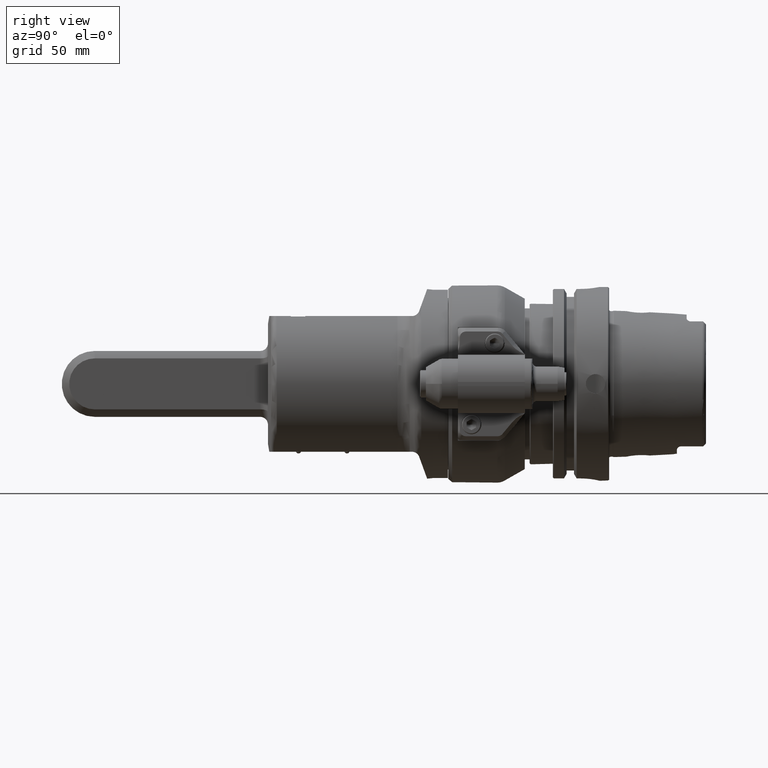
[diagram: clean part render]
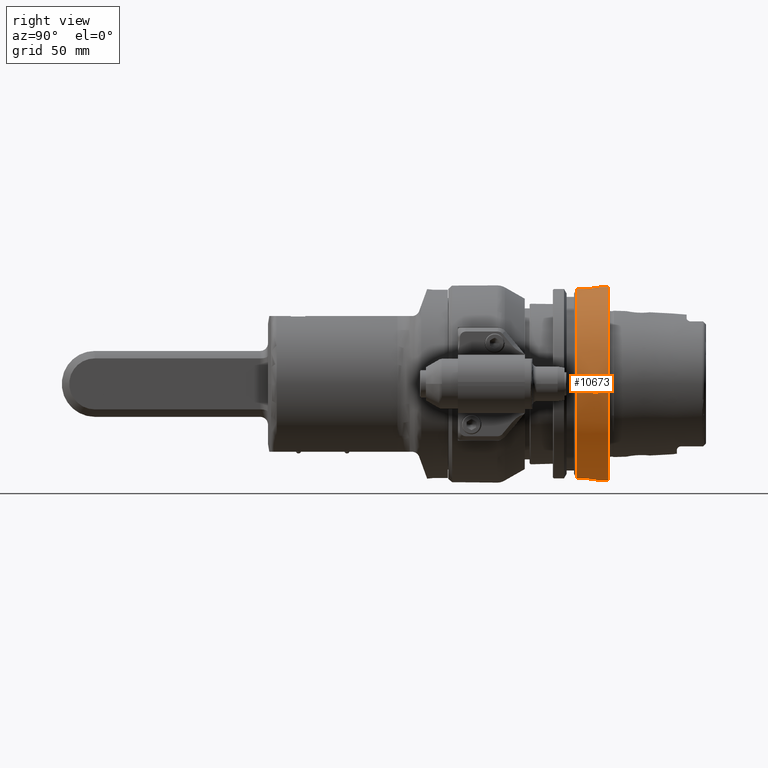
[diagram: same view with one face highlighted and labeled with its STEP entity id]
A machine part, right view. The second image highlights one B-rep face of the part: STEP entity #10673.
In plain terms, the highlighted cylindrical surface (bore or boss wall) has radius 50 mm, axis along (0, -1, 0).
Its self-contained STEP definition (entity closure, byte-faithful):
#300=FACE_BOUND('',#2525,.T.);
#430=B_SPLINE_CURVE_WITH_KNOTS('',3,(#59628,#59629,#59630,#59631,#59632,
#59633,#59634,#59635,#59636,#59637,#59638,#59639),.UNSPECIFIED.,.F.,.F.,
(4,2,2,2,2,4),(-2.43960407431131E-12,0.372938236851937,0.745876473706314,
0.949211985781746,1.15254749785718,1.4744467776868),.UNSPECIFIED.);
#431=B_SPLINE_CURVE_WITH_KNOTS('',3,(#59645,#59646,#59647,#59648,#59649,
#59650,#59651,#59652,#59653,#59654,#59655,#59656,#59657,#59658,#59659,#59660,
#59661,#59662),.UNSPECIFIED.,.F.,.F.,(4,2,2,2,2,2,2,2,4),(4.04676292476118E-14,
0.377795255890225,0.755590511780409,1.1333645980446,1.51113868430879,1.88891277057297,
2.26668685683716,2.64448211272735,3.02227736861753),.UNSPECIFIED.);
#432=B_SPLINE_CURVE_WITH_KNOTS('',3,(#59670,#59671,#59672,#59673,#59674,
#59675,#59676,#59677,#59678,#59679),.UNSPECIFIED.,.F.,.F.,(4,2,2,2,4),(1.50996806152533,
1.88841920047208,2.26687033941884,2.64473353329375,3.02259672716866),
 .UNSPECIFIED.);
#433=B_SPLINE_CURVE_WITH_KNOTS('',3,(#59683,#59684,#59685,#59686,#59687,
#59688,#59689,#59690,#59691,#59692),.UNSPECIFIED.,.F.,.F.,(4,2,2,2,4),(6.72795152923875E-14,
0.37808380192431,0.756167603848552,1.13439818677692,1.51262876970529),
 .UNSPECIFIED.);
#434=B_SPLINE_CURVE_WITH_KNOTS('',3,(#59702,#59703,#59704,#59705,#59706,
#59707,#59708,#59709,#59710,#59711,#59712,#59713,#59714,#59715,#59716,#59717,
#59718,#59719,#59720,#59721,#59722,#59723,#59724,#59725,#59726,#59727,#59728,
#59729,#59730,#59731,#59732,#59733,#59734,#59735),.UNSPECIFIED.,.T.,.F.,
(4,2,2,2,2,2,2,2,2,2,2,2,2,2,2,2,4),(-3.01565744395019,-2.82717853293504,
-2.63869962191989,-2.45022135244126,-2.26174308296264,-2.07326481348402,
-1.88478654400539,-1.69630763299024,-1.50782872197509,-1.31934981095994,
-1.1308708999448,-0.942392630466171,-0.753914360987547,-0.565436091508923,
-0.376957822030299,-0.188478911015149,0.),.UNSPECIFIED.);
#735=CYLINDRICAL_SURFACE('',#11776,50.);
#1180=CIRCLE('',#11777,50.);
#1181=CIRCLE('',#11778,50.);
#1182=CIRCLE('',#11779,50.);
#1183=CIRCLE('',#11780,50.);
#1184=CIRCLE('',#11781,50.);
#1185=CIRCLE('',#11782,50.);
#1186=CIRCLE('',#11783,50.);
#1792=FACE_OUTER_BOUND('',#2524,.T.);
#2524=EDGE_LOOP('',(#9141,#9142,#9143,#9144,#9145,#9146,#9147,#9148,#9149,
#9150,#9151,#9152,#9153,#9154,#9155,#9156,#9157,#9158,#9159));
#2525=EDGE_LOOP('',(#9160));
#3254=LINE('',#59601,#4006);
#3262=LINE('',#59627,#4014);
#3263=LINE('',#59643,#4015);
#3264=LINE('',#59664,#4016);
#3265=LINE('',#59668,#4017);
#3266=LINE('',#59694,#4018);
#3267=LINE('',#59697,#4019);
#4006=VECTOR('',#14427,2.11549883567801);
#4014=VECTOR('',#14439,11.7523966951103);
#4015=VECTOR('',#14442,1.752404735808);
#4016=VECTOR('',#14443,1.752404735808);
#4017=VECTOR('',#14446,1.752404735808);
#4018=VECTOR('',#14449,1.752404735809);
#4019=VECTOR('',#14452,50.);
#4962=VERTEX_POINT('',#59599);
#4963=VERTEX_POINT('',#59600);
#4971=VERTEX_POINT('',#59623);
#4972=VERTEX_POINT('',#59624);
#4973=VERTEX_POINT('',#59626);
#4974=VERTEX_POINT('',#59640);
#4975=VERTEX_POINT('',#59642);
#4976=VERTEX_POINT('',#59644);
#4977=VERTEX_POINT('',#59663);
#4978=VERTEX_POINT('',#59665);
#4979=VERTEX_POINT('',#59667);
#4980=VERTEX_POINT('',#59669);
#4981=VERTEX_POINT('',#59680);
#4982=VERTEX_POINT('',#59682);
#4983=VERTEX_POINT('',#59693);
#4984=VERTEX_POINT('',#59696);
#4985=VERTEX_POINT('',#59698);
#4986=VERTEX_POINT('',#59701);
#6391=EDGE_CURVE('',#4962,#4963,#3254,.T.);
#6401=EDGE_CURVE('',#4971,#4972,#1180,.T.);
#6402=EDGE_CURVE('',#4971,#4973,#3262,.T.);
#6403=EDGE_CURVE('',#4962,#4973,#430,.T.);
#6404=EDGE_CURVE('',#4974,#4963,#1181,.T.);
#6405=EDGE_CURVE('',#4974,#4975,#3263,.T.);
#6406=EDGE_CURVE('',#4976,#4975,#431,.T.);
#6407=EDGE_CURVE('',#4976,#4977,#3264,.T.);
#6408=EDGE_CURVE('',#4978,#4977,#1182,.T.);
#6409=EDGE_CURVE('',#4978,#4979,#3265,.T.);
#6410=EDGE_CURVE('',#4980,#4979,#432,.T.);
#6411=EDGE_CURVE('',#4980,#4981,#1183,.T.);
#6412=EDGE_CURVE('',#4982,#4981,#433,.T.);
#6413=EDGE_CURVE('',#4982,#4983,#3266,.T.);
#6414=EDGE_CURVE('',#4972,#4983,#1184,.T.);
#6415=EDGE_CURVE('',#4972,#4984,#3267,.T.);
#6416=EDGE_CURVE('',#4985,#4984,#1185,.T.);
#6417=EDGE_CURVE('',#4984,#4985,#1186,.T.);
#6418=EDGE_CURVE('',#4986,#4986,#434,.T.);
#9141=ORIENTED_EDGE('',*,*,#6401,.F.);
#9142=ORIENTED_EDGE('',*,*,#6402,.T.);
#9143=ORIENTED_EDGE('',*,*,#6403,.F.);
#9144=ORIENTED_EDGE('',*,*,#6391,.T.);
#9145=ORIENTED_EDGE('',*,*,#6404,.F.);
#9146=ORIENTED_EDGE('',*,*,#6405,.T.);
#9147=ORIENTED_EDGE('',*,*,#6406,.F.);
#9148=ORIENTED_EDGE('',*,*,#6407,.T.);
#9149=ORIENTED_EDGE('',*,*,#6408,.F.);
#9150=ORIENTED_EDGE('',*,*,#6409,.T.);
#9151=ORIENTED_EDGE('',*,*,#6410,.F.);
#9152=ORIENTED_EDGE('',*,*,#6411,.T.);
#9153=ORIENTED_EDGE('',*,*,#6412,.F.);
#9154=ORIENTED_EDGE('',*,*,#6413,.T.);
#9155=ORIENTED_EDGE('',*,*,#6414,.F.);
#9156=ORIENTED_EDGE('',*,*,#6415,.T.);
#9157=ORIENTED_EDGE('',*,*,#6416,.F.);
#9158=ORIENTED_EDGE('',*,*,#6417,.F.);
#9159=ORIENTED_EDGE('',*,*,#6415,.F.);
#9160=ORIENTED_EDGE('',*,*,#6418,.T.);
#10673=ADVANCED_FACE('',(#1792,#300),#735,.T.);
#11776=AXIS2_PLACEMENT_3D('',#59622,#14435,#14436);
#11777=AXIS2_PLACEMENT_3D('',#59625,#14437,#14438);
#11778=AXIS2_PLACEMENT_3D('',#59641,#14440,#14441);
#11779=AXIS2_PLACEMENT_3D('',#59666,#14444,#14445);
#11780=AXIS2_PLACEMENT_3D('',#59681,#14447,#14448);
#11781=AXIS2_PLACEMENT_3D('',#59695,#14450,#14451);
#11782=AXIS2_PLACEMENT_3D('',#59699,#14453,#14454);
#11783=AXIS2_PLACEMENT_3D('',#59700,#14455,#14456);
#14427=DIRECTION('',(-1.04536059038999E-6,-0.999999999999094,-8.48031499585527E-7));
#14435=DIRECTION('center_axis',(0.,-1.,0.));
#14436=DIRECTION('ref_axis',(1.,0.,0.));
#14437=DIRECTION('center_axis',(0.,-1.,0.));
#14438=DIRECTION('ref_axis',(-0.776595132614174,0.,0.629999999999979));
#14439=DIRECTION('',(-1.52646733164296E-7,0.999999999999971,-1.88166174768362E-7));
#14440=DIRECTION('center_axis',(0.,-1.,0.));
#14441=DIRECTION('ref_axis',(-0.199999999999994,0.,0.979795897113272));
#14442=DIRECTION('',(0.,1.,-6.5695296187E-15));
#14443=DIRECTION('',(0.,-1.,1.06242021566E-14));
#14444=DIRECTION('center_axis',(0.,-1.,0.));
#14445=DIRECTION('ref_axis',(0.219999999999995,0.,-0.975499871860577));
#14446=DIRECTION('',(0.,1.,1.37038330709E-14));
#14447=DIRECTION('center_axis',(0.,1.,0.));
#14448=DIRECTION('ref_axis',(0.02,0.,-0.999799979995999));
#14449=DIRECTION('',(0.,-1.,-1.37038330709001E-14));
#14450=DIRECTION('center_axis',(0.,-1.,0.));
#14451=DIRECTION('ref_axis',(-0.776595132614174,0.,0.629999999999979));
#14452=DIRECTION('',(0.,1.,0.));
#14453=DIRECTION('center_axis',(0.,1.,0.));
#14454=DIRECTION('ref_axis',(0.,-4.03896783473158E-29,1.));
#14455=DIRECTION('center_axis',(0.,1.,0.));
#14456=DIRECTION('ref_axis',(0.,-4.03896783473158E-29,1.));
#59599=CARTESIAN_POINT('',(-31.4999999999841,68.3631021407628,38.8297566307241));
#59600=CARTESIAN_POINT('',(-31.5000010664255,66.2475980093575,38.8297559102717));
#59601=CARTESIAN_POINT('',(-31.4999999999841,68.3631021407628,38.8297566307241));
#59622=CARTESIAN_POINT('Origin',(-4.060069640028E-12,56.62764574357,1.61332208073091E-20));
#59623=CARTESIAN_POINT('',(-38.8297553628639,66.2475951126294,31.5000011461844));
#59624=CARTESIAN_POINT('',(-50.0000000000041,66.2475952641887,-6.12321786251596E-15));
#59625=CARTESIAN_POINT('Origin',(-4.060069640028E-12,66.247595264189,1.61292383850241E-20));
#59626=CARTESIAN_POINT('',(-38.8297566307141,77.9999999999972,31.5000000000007));
#59627=CARTESIAN_POINT('',(-38.8297548367441,66.2476033048862,31.5000022114049));
#59628=CARTESIAN_POINT('Ctrl Pts',(-31.4999999999841,68.3631021407872,38.8297566307241));
#59629=CARTESIAN_POINT('Ctrl Pts',(-31.499999999981,69.6062295969664,38.8297566307265));
#59630=CARTESIAN_POINT('Ctrl Pts',(-31.7478638536999,70.9032298560246,38.6320743155519));
#59631=CARTESIAN_POINT('Ctrl Pts',(-32.670850768277,73.2213413873835,37.8547167431316));
#59632=CARTESIAN_POINT('Ctrl Pts',(-33.3424802708984,74.2428316697886,37.2720305584033));
#59633=CARTESIAN_POINT('Ctrl Pts',(-34.430997353879,75.4596547820777,36.2599154995303));
#59634=CARTESIAN_POINT('Ctrl Pts',(-34.8753539493002,75.8766305494428,35.8347517804275));
#59635=CARTESIAN_POINT('Ctrl Pts',(-35.7921541769779,76.5947204188212,34.9190699907218));
#59636=CARTESIAN_POINT('Ctrl Pts',(-36.2638982335853,76.8968755476647,34.4286683103101));
#59637=CARTESIAN_POINT('Ctrl Pts',(-37.3784500451856,77.5074692212597,33.224430179195));
#59638=CARTESIAN_POINT('Ctrl Pts',(-38.108821981964,77.8002395590736,32.3886894272231));
#59639=CARTESIAN_POINT('Ctrl Pts',(-38.8297566307123,77.9999999999979,31.4999999999995));
#59640=CARTESIAN_POINT('',(-10.0000000000041,66.2475952641894,48.9897948556649));
#59641=CARTESIAN_POINT('Origin',(-4.060069640028E-12,66.247595264189,1.61292383850241E-20));
#59642=CARTESIAN_POINT('',(-10.0000000000041,67.9999999999974,48.9897948556642));
#59643=CARTESIAN_POINT('',(-10.0000000000041,66.2475952641894,48.9897948556649));
#59644=CARTESIAN_POINT('',(9.99999999999594,67.9999999999974,48.9897948556642));
#59645=CARTESIAN_POINT('Ctrl Pts',(9.99999999999594,67.999999999997,48.9897948556636));
#59646=CARTESIAN_POINT('Ctrl Pts',(9.99999999999589,69.259317519631,48.9897948556636));
#59647=CARTESIAN_POINT('Ctrl Pts',(9.74762796248208,70.6001777716159,49.0433876618447));
#59648=CARTESIAN_POINT('Ctrl Pts',(8.72605417647976,73.0629200502975,49.2354150792771));
#59649=CARTESIAN_POINT('Ctrl Pts',(7.95703102191683,74.1851046018071,49.3709085101933));
#59650=CARTESIAN_POINT('Ctrl Pts',(6.18515424644688,75.956981377277,49.6240337638318));
#59651=CARTESIAN_POINT('Ctrl Pts',(5.0629486119722,76.7260434154446,49.7583347151863));
#59652=CARTESIAN_POINT('Ctrl Pts',(2.60013306081459,77.7476454223553,49.9476188647081));
#59653=CARTESIAN_POINT('Ctrl Pts',(1.25924695420994,77.999999999997,50.));
#59654=CARTESIAN_POINT('Ctrl Pts',(-1.25924695421806,77.999999999997,50.));
#59655=CARTESIAN_POINT('Ctrl Pts',(-2.60013306082271,77.7476454223553,49.9476188647081));
#59656=CARTESIAN_POINT('Ctrl Pts',(-5.06294861198032,76.7260434154446,49.7583347151863));
#59657=CARTESIAN_POINT('Ctrl Pts',(-6.185154246455,75.956981377277,49.6240337638318));
#59658=CARTESIAN_POINT('Ctrl Pts',(-7.95703102192495,74.1851046018071,49.3709085101933));
#59659=CARTESIAN_POINT('Ctrl Pts',(-8.72605417648788,73.0629200502975,49.2354150792771));
#59660=CARTESIAN_POINT('Ctrl Pts',(-9.7476279624902,70.6001777716159,49.0433876618447));
#59661=CARTESIAN_POINT('Ctrl Pts',(-10.0000000000041,69.259317519631,48.9897948556636));
#59662=CARTESIAN_POINT('Ctrl Pts',(-10.0000000000041,67.999999999997,48.9897948556636));
#59663=CARTESIAN_POINT('',(9.99999999999594,66.2475952641894,48.9897948556649));
#59664=CARTESIAN_POINT('',(9.99999999999594,67.9999999999974,48.9897948556642));
#59665=CARTESIAN_POINT('',(10.9999999999959,66.2475952641887,-48.7749935930251));
#59666=CARTESIAN_POINT('Origin',(-4.060069640028E-12,66.247595264189,1.61292383850241E-20));
#59667=CARTESIAN_POINT('',(10.9999999999959,67.9999999999977,-48.7749935930258));
#59668=CARTESIAN_POINT('',(10.9999999999959,66.2475952641887,-48.7749935930251));
#59669=CARTESIAN_POINT('',(0.99999999999594,77.9999999999972,-49.9899989997993));
#59670=CARTESIAN_POINT('Ctrl Pts',(0.999999999995943,77.999999999997,-49.9899989997999));
#59671=CARTESIAN_POINT('Ctrl Pts',(2.26125147049077,77.999999999997,-49.9647689238702));
#59672=CARTESIAN_POINT('Ctrl Pts',(3.6030926086428,77.746926740795,-49.8853600567865));
#59673=CARTESIAN_POINT('Ctrl Pts',(6.06650925177594,76.7240561053427,-49.6460359942126));
#59674=CARTESIAN_POINT('Ctrl Pts',(7.18842719108116,75.9544802180615,-49.4887060645895));
#59675=CARTESIAN_POINT('Ctrl Pts',(8.95850056251899,74.1828617854483,-49.1990678796224));
#59676=CARTESIAN_POINT('Ctrl Pts',(9.72667325975425,73.0616638721628,-49.0475663096823));
#59677=CARTESIAN_POINT('Ctrl Pts',(10.7475295248831,70.6001786915886,-48.8340306344483));
#59678=CARTESIAN_POINT('Ctrl Pts',(10.9999999999959,69.2595439795801,-48.7749935930288));
#59679=CARTESIAN_POINT('Ctrl Pts',(10.9999999999959,67.999999999997,-48.7749935930288));
#59680=CARTESIAN_POINT('',(-1.00000000000406,77.9999999999972,-49.9899989997993));
#59681=CARTESIAN_POINT('Origin',(-4.060069640028E-12,77.999999999997,1.61228729717166E-20));
#59682=CARTESIAN_POINT('',(-11.0000000000041,67.9999999999977,-48.7749935930258));
#59683=CARTESIAN_POINT('Ctrl Pts',(-11.0000000000041,67.999999999997,-48.7749935930288));
#59684=CARTESIAN_POINT('Ctrl Pts',(-11.000000000004,69.2602793397445,-48.7749935930288));
#59685=CARTESIAN_POINT('Ctrl Pts',(-10.7472375086764,70.6016427740415,-48.8341008360866));
#59686=CARTESIAN_POINT('Ctrl Pts',(-9.72529017934128,73.0642375286788,-49.0478464783375));
#59687=CARTESIAN_POINT('Ctrl Pts',(-8.95631855422919,74.1858170695028,-49.1994816343891));
#59688=CARTESIAN_POINT('Ctrl Pts',(-7.18547339439816,75.9566622293339,-49.4891324647498));
#59689=CARTESIAN_POINT('Ctrl Pts',(-6.06393709160395,76.7254391680062,-49.6463362271811));
#59690=CARTESIAN_POINT('Ctrl Pts',(-3.6016294564887,77.7472187213357,-49.8854517769764));
#59691=CARTESIAN_POINT('Ctrl Pts',(-2.26051643082298,77.999999999997,-49.9647836276047));
#59692=CARTESIAN_POINT('Ctrl Pts',(-1.00000000000406,77.999999999997,-49.9899989997999));
#59693=CARTESIAN_POINT('',(-11.0000000000041,66.2475952641887,-48.7749935930251));
#59694=CARTESIAN_POINT('',(-11.0000000000041,67.9999999999977,-48.7749935930258));
#59695=CARTESIAN_POINT('Origin',(-4.060069640028E-12,66.247595264189,1.61292383850241E-20));
#59696=CARTESIAN_POINT('',(-50.0000000000041,82.5,-6.12321786251596E-15));
#59697=CARTESIAN_POINT('',(-50.0000000000041,56.62764574357,-6.12321786251596E-15));
#59698=CARTESIAN_POINT('',(-4.060069640028E-12,82.4999999999978,49.9999999999991));
#59699=CARTESIAN_POINT('Origin',(-4.060069640028E-12,82.5,1.6123155699465E-20));
#59700=CARTESIAN_POINT('Origin',(-4.060069640028E-12,82.5,1.6123155699465E-20));
#59701=CARTESIAN_POINT('',(49.7493718553259,75.9999999999958,5.0000000000004));
#59702=CARTESIAN_POINT('Ctrl Pts',(49.7493718553269,75.999999999996,4.99999999999999));
#59703=CARTESIAN_POINT('Ctrl Pts',(49.7493718553269,76.6282630367132,4.99999999999999));
#59704=CARTESIAN_POINT('Ctrl Pts',(49.7624993987057,77.2981142911871,4.87435544587054));
#59705=CARTESIAN_POINT('Ctrl Pts',(49.8098541153658,78.5298857522787,4.36395693611591));
#59706=CARTESIAN_POINT('Ctrl Pts',(49.843390866092,79.0918419046211,3.97922590724032));
#59707=CARTESIAN_POINT('Ctrl Pts',(49.9062957431432,79.9792243970163,3.09184341484516));
#59708=CARTESIAN_POINT('Ctrl Pts',(49.9397591808565,80.3639566043167,2.52988660036718));
#59709=CARTESIAN_POINT('Ctrl Pts',(49.9869460568255,80.8743559937749,1.29811292154946));
#59710=CARTESIAN_POINT('Ctrl Pts',(49.9999999999959,80.999999999996,0.628260898262075));
#59711=CARTESIAN_POINT('Ctrl Pts',(49.9999999999959,80.999999999996,-0.628260898262086));
#59712=CARTESIAN_POINT('Ctrl Pts',(49.9869460568255,80.8743559937749,-1.29811292154947));
#59713=CARTESIAN_POINT('Ctrl Pts',(49.9397591808565,80.3639566043167,-2.52988660036719));
#59714=CARTESIAN_POINT('Ctrl Pts',(49.9062957431432,79.9792243970163,-3.09184341484517));
#59715=CARTESIAN_POINT('Ctrl Pts',(49.843390866092,79.0918419046211,-3.97922590724033));
#59716=CARTESIAN_POINT('Ctrl Pts',(49.8098541153658,78.5298857522787,-4.36395693611592));
#59717=CARTESIAN_POINT('Ctrl Pts',(49.7624993987057,77.2981142911871,-4.87435544587056));
#59718=CARTESIAN_POINT('Ctrl Pts',(49.7493718553269,76.6282630367132,-5.00000000000001));
#59719=CARTESIAN_POINT('Ctrl Pts',(49.7493718553269,75.3717369632788,-5.00000000000001));
#59720=CARTESIAN_POINT('Ctrl Pts',(49.7624993987057,74.7018857088049,-4.87435544587055));
#59721=CARTESIAN_POINT('Ctrl Pts',(49.8098541153658,73.4701142477133,-4.36395693611592));
#59722=CARTESIAN_POINT('Ctrl Pts',(49.843390866092,72.9081580953709,-3.97922590724033));
#59723=CARTESIAN_POINT('Ctrl Pts',(49.9062957431432,72.0207756029757,-3.09184341484517));
#59724=CARTESIAN_POINT('Ctrl Pts',(49.9397591808565,71.6360433956753,-2.52988660036719));
#59725=CARTESIAN_POINT('Ctrl Pts',(49.9869460568255,71.1256440062171,-1.29811292154947));
#59726=CARTESIAN_POINT('Ctrl Pts',(49.9999999999959,70.999999999996,-0.628260898262088));
#59727=CARTESIAN_POINT('Ctrl Pts',(49.9999999999959,70.999999999996,0.628260898262072));
#59728=CARTESIAN_POINT('Ctrl Pts',(49.9869460568255,71.1256440062171,1.29811292154945));
#59729=CARTESIAN_POINT('Ctrl Pts',(49.9397591808565,71.6360433956753,2.52988660036718));
#59730=CARTESIAN_POINT('Ctrl Pts',(49.9062957431432,72.0207756029757,3.09184341484516));
#59731=CARTESIAN_POINT('Ctrl Pts',(49.843390866092,72.9081580953709,3.97922590724032));
#59732=CARTESIAN_POINT('Ctrl Pts',(49.8098541153658,73.4701142477133,4.3639569361159));
#59733=CARTESIAN_POINT('Ctrl Pts',(49.7624993987057,74.7018857088049,4.87435544587054));
#59734=CARTESIAN_POINT('Ctrl Pts',(49.7493718553269,75.3717369632788,4.99999999999999));
#59735=CARTESIAN_POINT('Ctrl Pts',(49.7493718553269,75.999999999996,4.99999999999999));